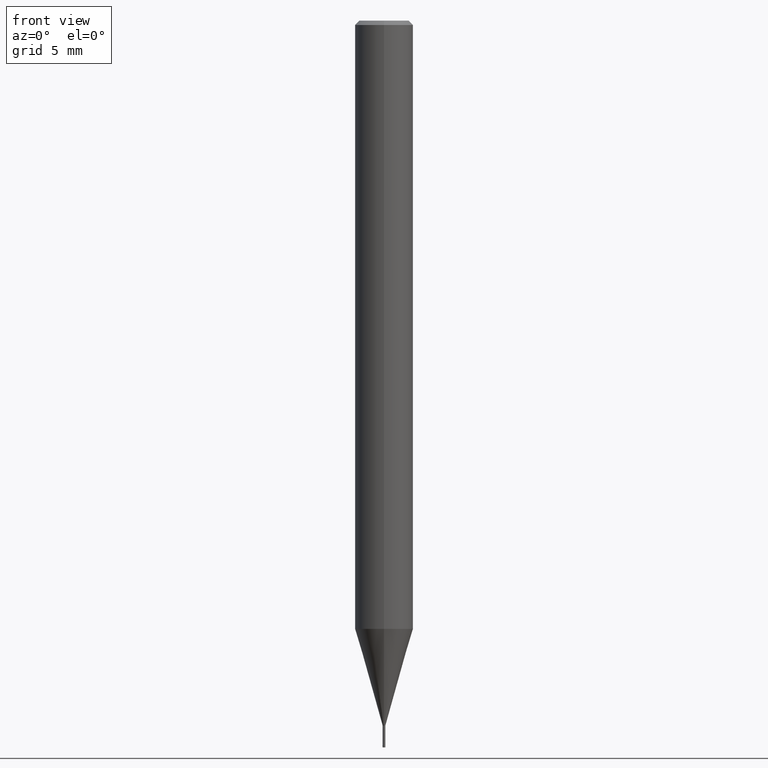
[diagram: clean part render]
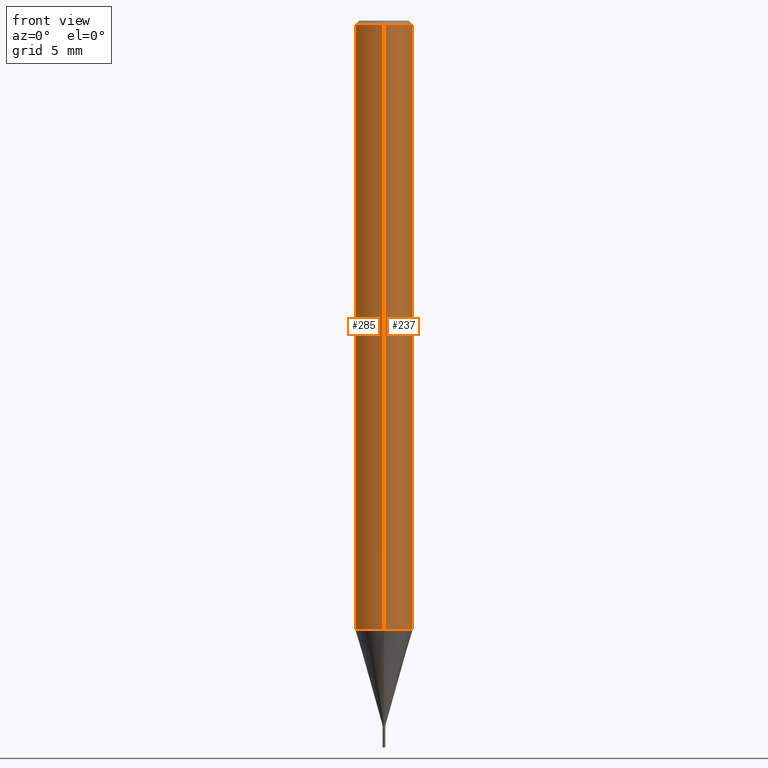
[diagram: same view with one multi-face feature highlighted, each face labeled with its STEP entity id]
A machine part, front view. The highlighted faces form ONE feature: a constant-radius fillet chain: 2 tangent blend faces with common blend radius 2 mm. The faces share edges in the B-rep.
Their STEP definitions:
[1] entity #285 (Cylinder):
#141=EDGE_CURVE('',#247,#289,#376,.T.);
#155=VERTEX_POINT('',#391);
#161=VERTEX_POINT('',#397);
#233=EDGE_CURVE('',#155,#161,#479,.T.);
#247=VERTEX_POINT('',#495);
#267=EDGE_CURVE('',#161,#247,#519,.T.);
#283=EDGE_CURVE('',#155,#289,#536,.T.);
#285=ADVANCED_FACE('',(#538),#539,.T.);
#289=VERTEX_POINT('',#543);
#376=LINE('',#634,#635);
#391=CARTESIAN_POINT('',(2.44921270764475E-016,-2.0,-41.838));
#397=CARTESIAN_POINT('',(2.44921270764475E-016,-2.0,-0.289999999999999));
#479=LINE('',#770,#771);
#495=CARTESIAN_POINT('',(0.0,2.0,-0.289999999999999));
#519=CIRCLE('',#818,2.0);
#536=CIRCLE('',#840,2.0);
#538=FACE_OUTER_BOUND('',#842,.T.);
#539=CYLINDRICAL_SURFACE('',#843,2.0);
#543=CARTESIAN_POINT('',(0.0,2.0,-41.838));
#634=CARTESIAN_POINT('',(-2.44921270764475E-016,2.0,-21.064));
#635=VECTOR('',#945,1.0);
#770=CARTESIAN_POINT('',(2.44921270764475E-016,-2.0,-21.064));
#771=VECTOR('',#1077,1.0);
#818=AXIS2_PLACEMENT_3D('',#1139,#1140,#1141);
#840=AXIS2_PLACEMENT_3D('',#1161,#1162,#1163);
#842=EDGE_LOOP('',(#1165,#1166,#1167,#1168));
#843=AXIS2_PLACEMENT_3D('',#1169,#1170,#1171);
#945=DIRECTION('',(0.0,0.0,-1.0));
#1077=DIRECTION('',(-0.0,-0.0,1.0));
#1139=CARTESIAN_POINT('',(0.0,0.0,-0.289999999999999));
#1140=DIRECTION('',(0.0,0.0,-1.0));
#1141=DIRECTION('',(0.0,1.0,0.0));
#1161=CARTESIAN_POINT('',(0.0,0.0,-41.838));
#1162=DIRECTION('',(0.0,0.0,-1.0));
#1163=DIRECTION('',(0.0,1.0,0.0));
#1165=ORIENTED_EDGE('',*,*,#141,.T.);
#1166=ORIENTED_EDGE('',*,*,#283,.F.);
#1167=ORIENTED_EDGE('',*,*,#233,.T.);
#1168=ORIENTED_EDGE('',*,*,#267,.T.);
#1169=CARTESIAN_POINT('',(0.0,0.0,-21.064));
#1170=DIRECTION('',(-0.0,-0.0,1.0));
#1171=DIRECTION('',(0.0,1.0,0.0));
[2] entity #237 (Cylinder):
#141=EDGE_CURVE('',#247,#289,#376,.T.);
#155=VERTEX_POINT('',#391);
#161=VERTEX_POINT('',#397);
#165=EDGE_CURVE('',#247,#161,#401,.T.);
#233=EDGE_CURVE('',#155,#161,#479,.T.);
#237=ADVANCED_FACE('',(#484),#485,.T.);
#247=VERTEX_POINT('',#495);
#289=VERTEX_POINT('',#543);
#325=EDGE_CURVE('',#289,#155,#582,.T.);
#376=LINE('',#634,#635);
#391=CARTESIAN_POINT('',(2.44921270764475E-016,-2.0,-41.838));
#397=CARTESIAN_POINT('',(2.44921270764475E-016,-2.0,-0.289999999999999));
#401=CIRCLE('',#667,2.0);
#479=LINE('',#770,#771);
#484=FACE_OUTER_BOUND('',#776,.T.);
#485=CYLINDRICAL_SURFACE('',#777,2.0);
#495=CARTESIAN_POINT('',(0.0,2.0,-0.289999999999999));
#543=CARTESIAN_POINT('',(0.0,2.0,-41.838));
#582=CIRCLE('',#898,2.0);
#634=CARTESIAN_POINT('',(-2.44921270764475E-016,2.0,-21.064));
#635=VECTOR('',#945,1.0);
#667=AXIS2_PLACEMENT_3D('',#962,#963,#964);
#770=CARTESIAN_POINT('',(2.44921270764475E-016,-2.0,-21.064));
#771=VECTOR('',#1077,1.0);
#776=EDGE_LOOP('',(#1087,#1088,#1089,#1090));
#777=AXIS2_PLACEMENT_3D('',#1091,#1092,#1093);
#898=AXIS2_PLACEMENT_3D('',#1206,#1207,#1208);
#945=DIRECTION('',(0.0,0.0,-1.0));
#962=CARTESIAN_POINT('',(0.0,0.0,-0.289999999999999));
#963=DIRECTION('',(0.0,0.0,-1.0));
#964=DIRECTION('',(0.0,1.0,0.0));
#1077=DIRECTION('',(-0.0,-0.0,1.0));
#1087=ORIENTED_EDGE('',*,*,#141,.F.);
#1088=ORIENTED_EDGE('',*,*,#165,.T.);
#1089=ORIENTED_EDGE('',*,*,#233,.F.);
#1090=ORIENTED_EDGE('',*,*,#325,.F.);
#1091=CARTESIAN_POINT('',(0.0,0.0,-21.064));
#1092=DIRECTION('',(-0.0,-0.0,1.0));
#1093=DIRECTION('',(0.0,1.0,0.0));
#1206=CARTESIAN_POINT('',(0.0,0.0,-41.838));
#1207=DIRECTION('',(0.0,0.0,-1.0));
#1208=DIRECTION('',(0.0,1.0,0.0));